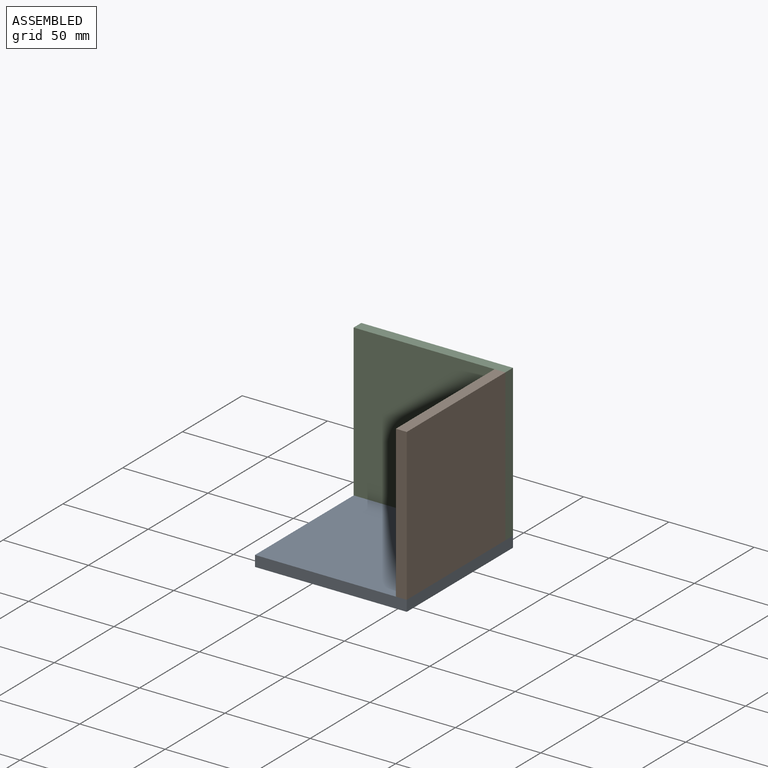
[diagram: assembled view]
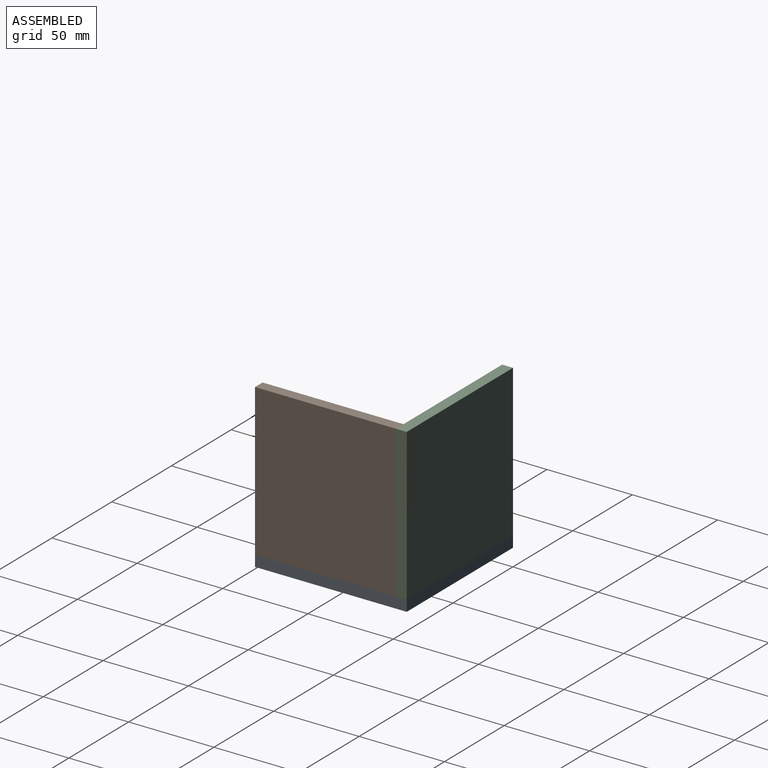
[diagram: assembled view, second angle]
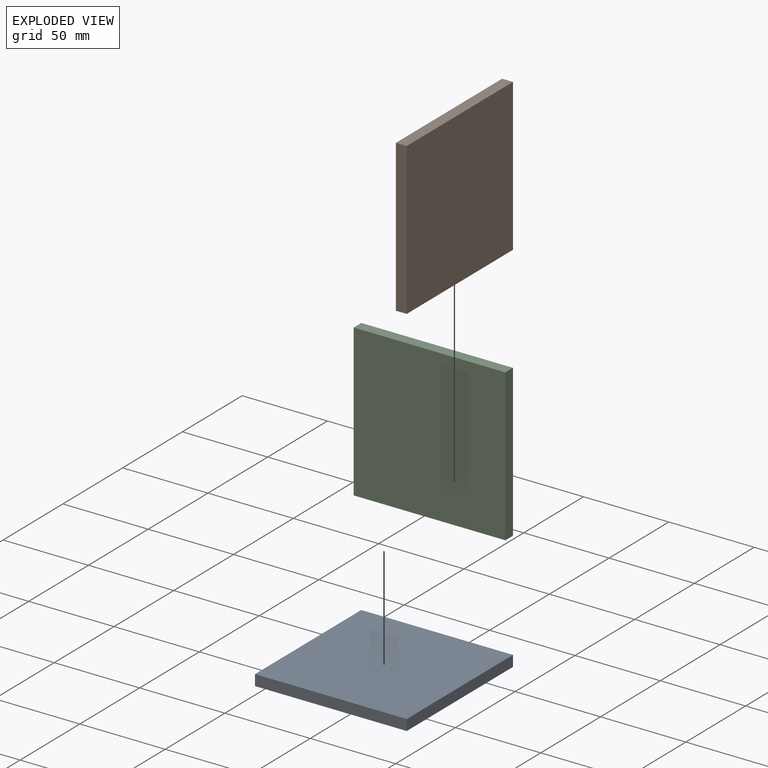
[diagram: exploded view]
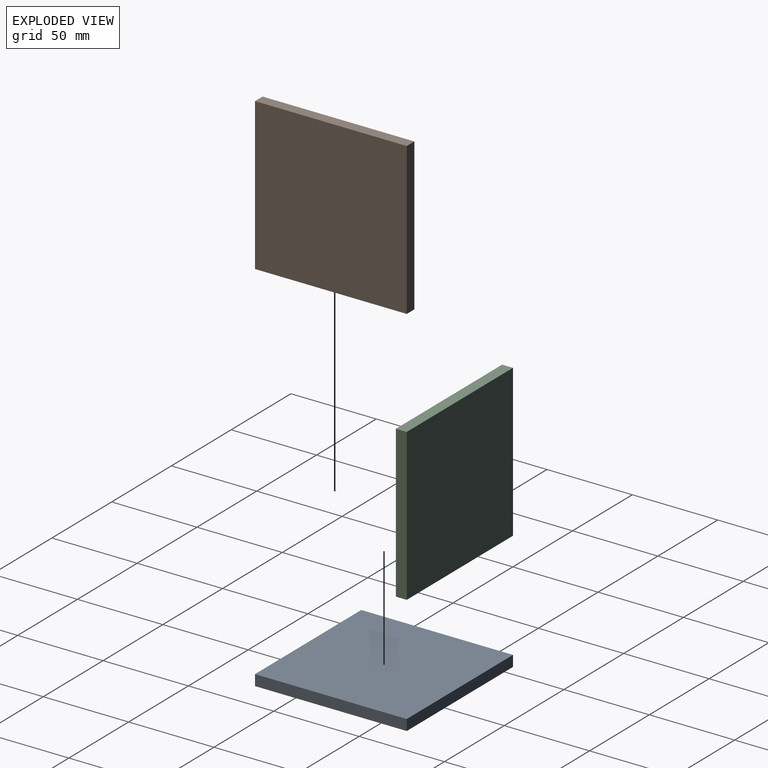
[diagram: exploded view, second angle]
ASSEMBLY  parts=3 mates=2
PART A: 6 faces, bbox 88.9x6.4x88.9 mm
  f0: plane 88.9x6.35mm, normal (-1,0,0), area 564.5mm2, adj f1,f3,f4,f5
  f1: plane 88.9x6.35mm, normal (0,0,-1), area 564.5mm2, adj f0,f2,f4,f5
  f2: plane 88.9x6.35mm, normal (1,0,0), area 564.5mm2, adj f1,f3,f4,f5
  f3: plane 88.9x6.35mm, normal (0,0,1), area 564.5mm2, adj f0,f2,f4,f5
  f4: plane 88.9x88.9mm, normal (0,-1,0), area 7903.2mm2, adj f0,f1,f2,f3
  f5: plane 88.9x88.9mm, normal (0,1,0), area 7903.2mm2, adj f0,f1,f2,f3
PART B: same geometry as A
PART C: same geometry as A
PLACE A rot(axis=(0.58,-0.58,-0.58),120deg) t=(-1.51,21.71,-27.15)mm
PLACE B rot(axis=(0,0,-1),90deg) t=(36.03,21.71,10.38)mm
PLACE C t=(-6.4,68.17,10.38)mm
MATE fastened A.f5 <-> B.f1  axis (0,0,1) through (36.03,23.72,-27.15)mm
MATE fastened A.f5 <-> C.f1  axis (0,0,1) through (-8.42,68.17,-27.15)mm
